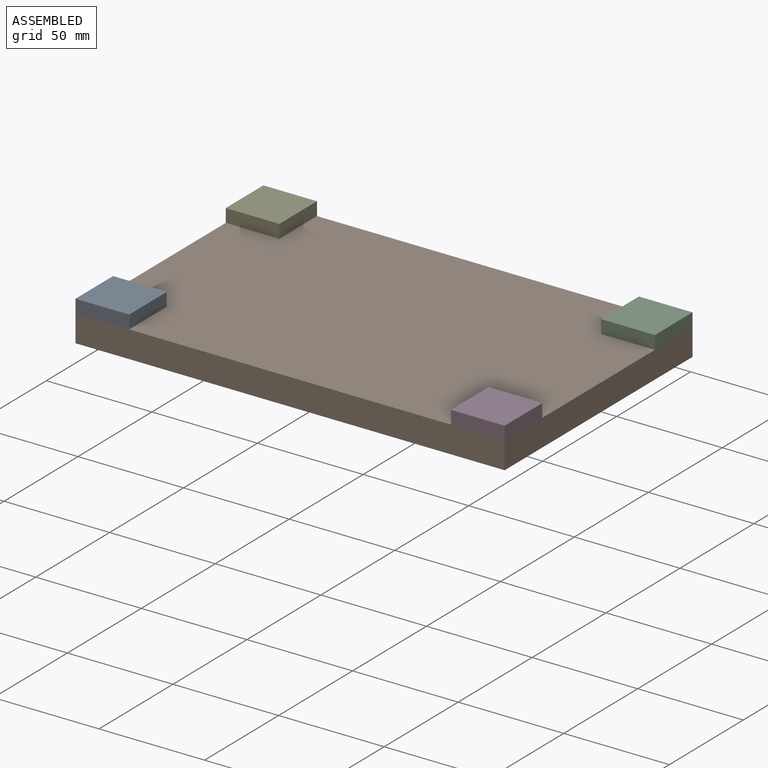
[diagram: assembled view]
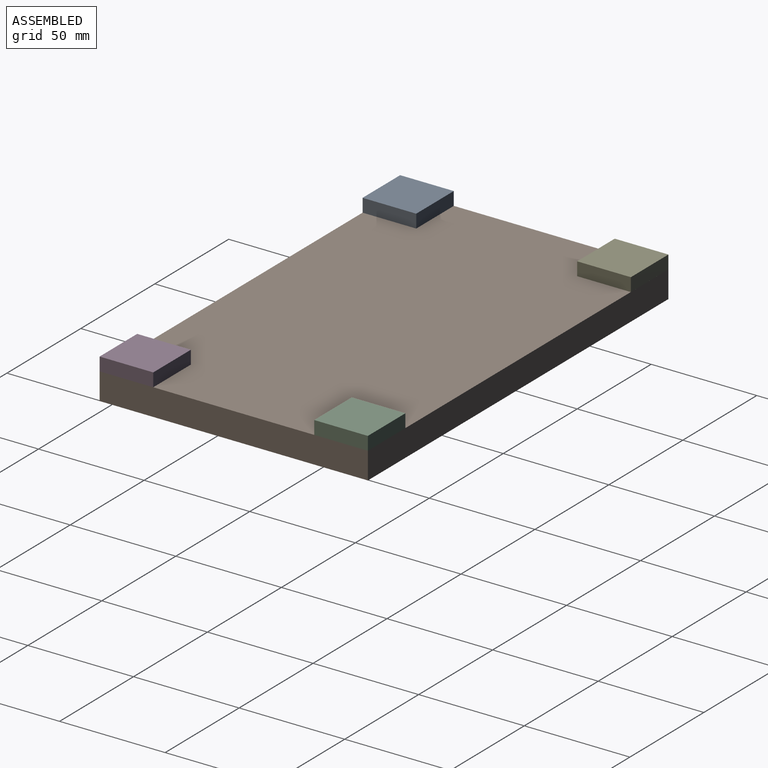
[diagram: assembled view, second angle]
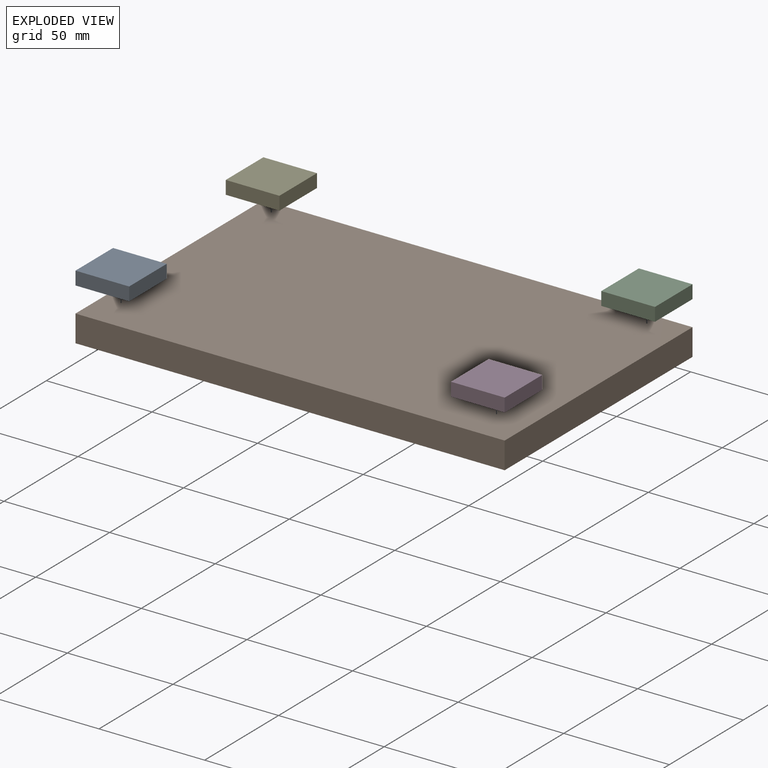
[diagram: exploded view]
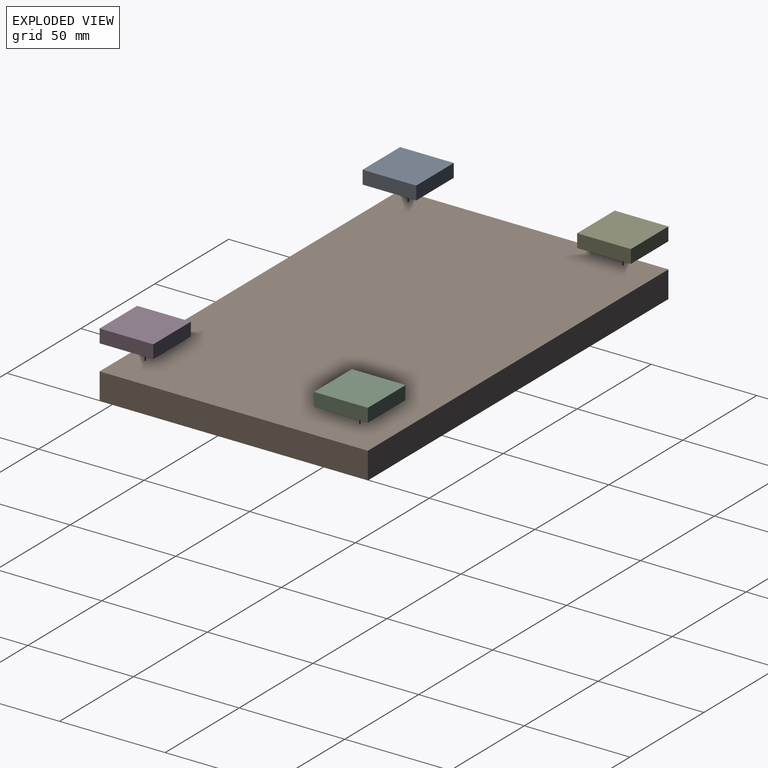
[diagram: exploded view, second angle]
ASSEMBLY  parts=5 mates=4
PART A: 6 faces, bbox 25.4x25.4x6.4 mm
  f0: plane 25.4x6.35mm, normal (0,1,0), area 161.3mm2, adj f1,f3,f4,f5
  f1: plane 25.4x6.35mm, normal (-1,0,0), area 161.3mm2, adj f0,f2,f4,f5
  f2: plane 25.4x6.35mm, normal (0,-1,0), area 161.3mm2, adj f1,f3,f4,f5
  f3: plane 25.4x6.35mm, normal (1,0,0), area 161.3mm2, adj f0,f2,f4,f5
  f4: plane 25.4x25.4mm, normal (0,0,1), area 645.2mm2, adj f0,f1,f2,f3
  f5: plane 25.4x25.4mm, normal (0,0,-1), area 645.2mm2, adj f0,f1,f2,f3
PART B: 6 faces, bbox 127x12.7x203.2 mm
  f0: plane 127x12.7mm, normal (0,0,1), area 1612.9mm2, adj f1,f3,f4,f5
  f1: plane 203.2x12.7mm, normal (-1,0,0), area 2580.6mm2, adj f0,f2,f4,f5
  f2: plane 127x12.7mm, normal (0,0,-1), area 1612.9mm2, adj f1,f3,f4,f5
  f3: plane 203.2x12.7mm, normal (1,0,0), area 2580.6mm2, adj f0,f2,f4,f5
  f4: plane 203.2x127mm, normal (0,-1,0), area 25806.4mm2, adj f0,f1,f2,f3
  f5: plane 203.2x127mm, normal (0,1,0), area 25806.4mm2, adj f0,f1,f2,f3
PART C: same geometry as A
PART D: same geometry as A
PART E: same geometry as A
PLACE A rot(axis=(1,0,0),180deg) t=(-411.41,-31.39,-111.15)mm
PLACE B rot(axis=(0.58,0.58,0.58),120deg) t=(-309.81,6.71,-117.5)mm
PLACE C rot(axis=(0,0,1),90deg) t=(-208.21,44.81,-117.5)mm
PLACE D t=(-233.61,-56.79,-117.5)mm
PLACE E rot(axis=(0.71,-0.71,0),180deg) t=(-386.01,70.21,-111.15)mm
MATE fastened B.f5 <-> C.f5  axis (0,0,1) through (-208.21,70.21,-117.5)mm
MATE fastened E.f4 <-> B.f5  axis (0,0,-1) through (-411.41,70.21,-117.5)mm
MATE fastened A.f4 <-> B.f5  axis (0,0,-1) through (-411.41,-56.79,-117.5)mm
MATE fastened B.f5 <-> D.f5  axis (0,0,1) through (-208.21,-56.79,-117.5)mm
